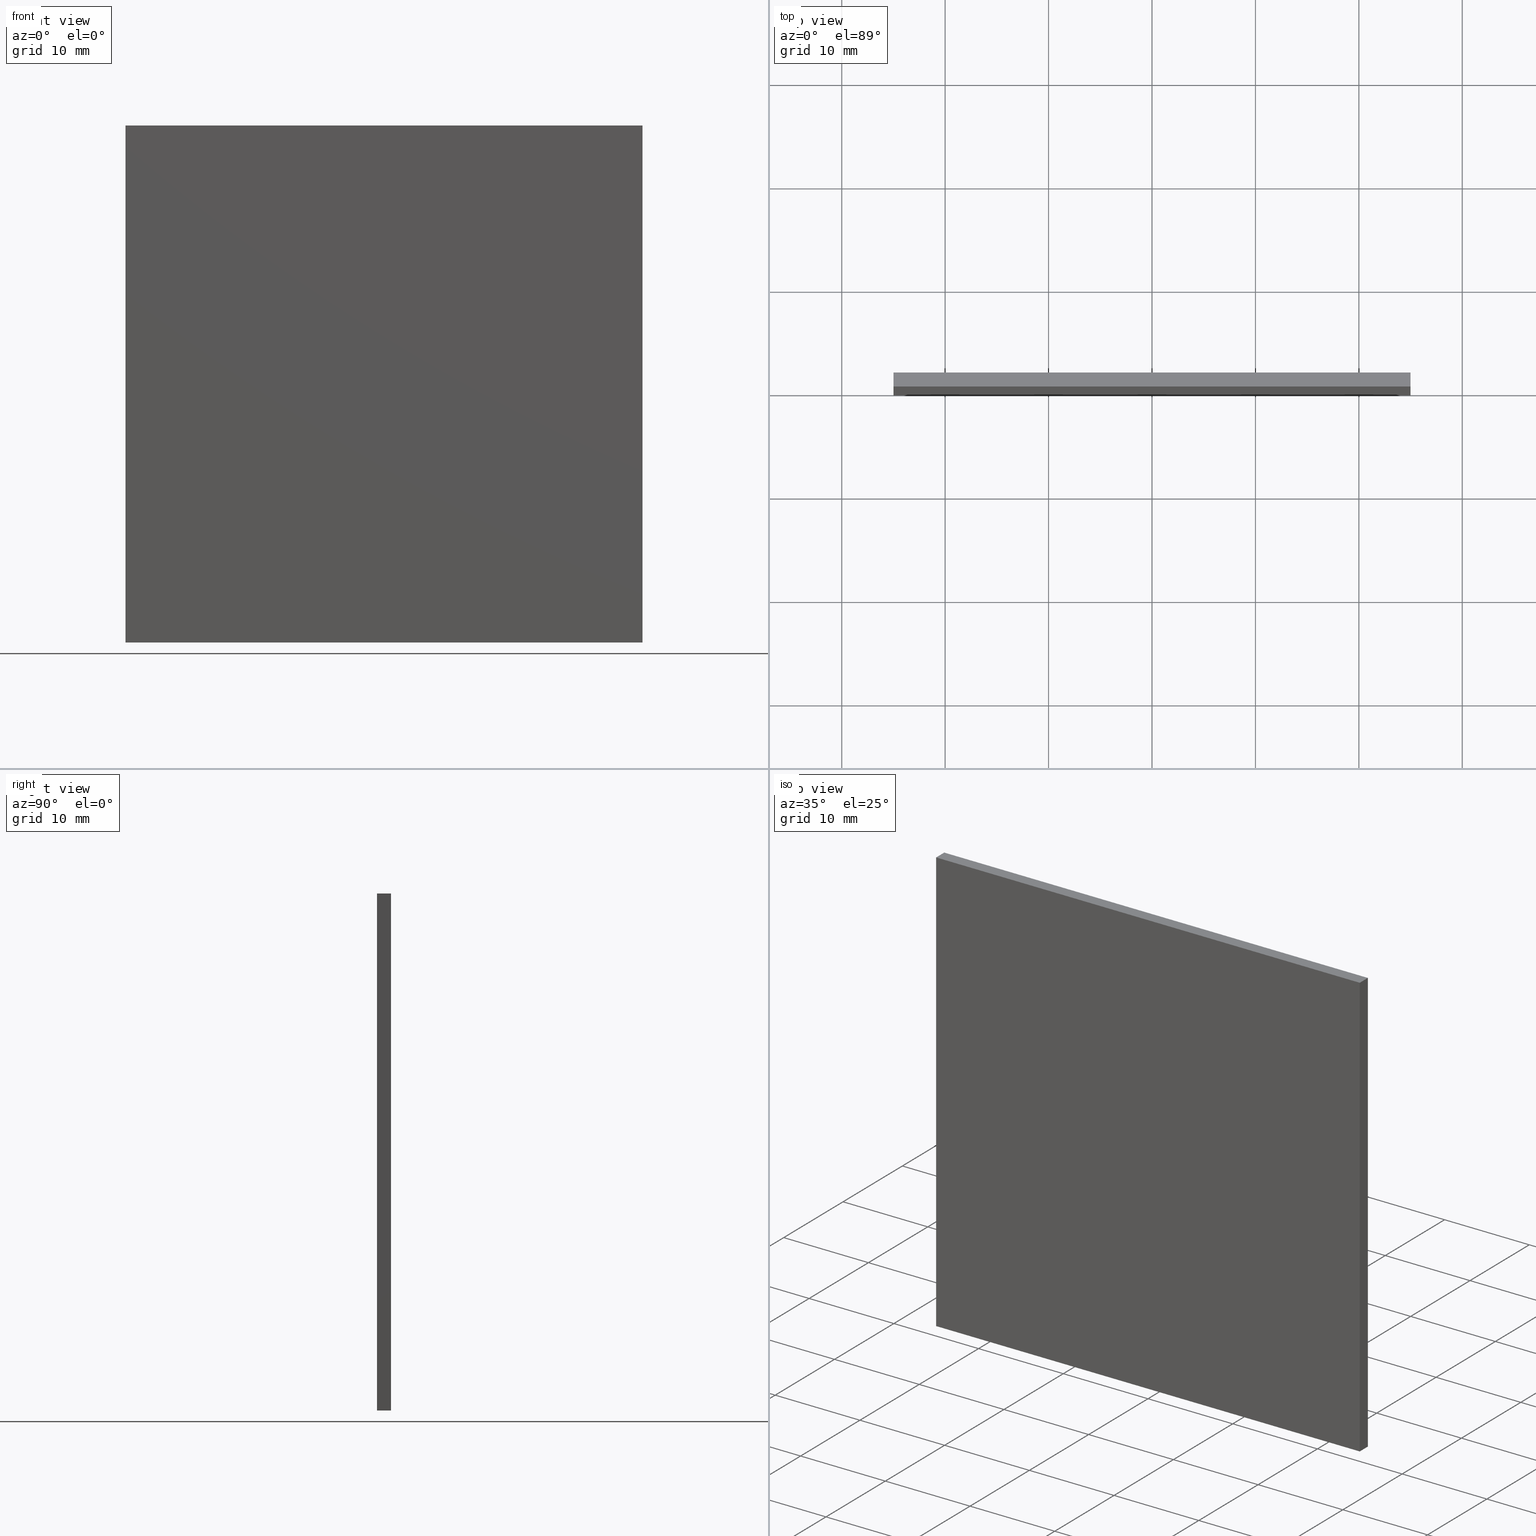
[diagram: canonical four-view strip — front | top / right | iso, engineering-drawing reading convention]
A machine part, canonical four-view strip (front | top / right | iso — engineering-drawing reading convention). The complete STEP part file that produces these views, byte-faithful:
ISO-10303-21;
HEADER;
FILE_DESCRIPTION (( 'STEP AP214' ),
    '1' );
FILE_NAME ('248612.STEP',
    '2019-08-06T06:15:41',
    ( 'user' ),
    ( '΢���й�' ),
    'SwSTEP 2.0',
    'SolidWorks 2016',
    '' );
FILE_SCHEMA (( 'AUTOMOTIVE_DESIGN' ));
ENDSEC;

DATA;
#1 = DIRECTION ( 'NONE',  ( 0.0000000000000000000, -0.0000000000000000000, -1.000000000000000000 ) ) ;
#2 = PRODUCT_DEFINITION_CONTEXT ( 'detailed design', #114, 'design' ) ;
#3 = LINE ( 'NONE', #56, #121 ) ;
#4 = ORIENTED_EDGE ( 'NONE', *, *, #50, .F. ) ;
#5 = AXIS2_PLACEMENT_3D ( 'NONE', #132, #202, #1 ) ;
#6 = AXIS2_PLACEMENT_3D ( 'NONE', #182, #25, #20 ) ;
#7 = VECTOR ( 'NONE', #71, 1000.000000000000000 ) ;
#8 =( LENGTH_UNIT ( ) NAMED_UNIT ( * ) SI_UNIT ( .MILLI., .METRE. ) );
#9 =( NAMED_UNIT ( * ) SI_UNIT ( $, .STERADIAN. ) SOLID_ANGLE_UNIT ( ) );
#10 = ORIENTED_EDGE ( 'NONE', *, *, #180, .F. ) ;
#11 = APPLICATION_PROTOCOL_DEFINITION ( 'draft international standard', 'automotive_design', 1998, #114 ) ;
#12 = ADVANCED_FACE ( 'NONE', ( #125 ), #100, .F. ) ;
#13 = DIRECTION ( 'NONE',  ( 0.0000000000000000000, 0.0000000000000000000, 1.000000000000000000 ) ) ;
#14 = DIRECTION ( 'NONE',  ( -1.000000000000000000, -0.0000000000000000000, -0.0000000000000000000 ) ) ;
#15 = STYLED_ITEM ( 'NONE', ( #174 ), #27 ) ;
#16 = ORIENTED_EDGE ( 'NONE', *, *, #63, .T. ) ;
#17 = FACE_OUTER_BOUND ( 'NONE', #183, .T. ) ;
#18 = VERTEX_POINT ( 'NONE', #43 ) ;
#19 = LINE ( 'NONE', #150, #88 ) ;
#20 = DIRECTION ( 'NONE',  ( 0.0000000000000000000, 0.0000000000000000000, 1.000000000000000000 ) ) ;
#21 = PLANE ( 'NONE',  #48 ) ;
#22 = SURFACE_STYLE_FILL_AREA ( #59 ) ;
#23 = EDGE_CURVE ( 'NONE', #173, #199, #47, .T. ) ;
#24 = VECTOR ( 'NONE', #75, 1000.000000000000000 ) ;
#25 = DIRECTION ( 'NONE',  ( -1.000000000000000000, 0.0000000000000000000, 0.0000000000000000000 ) ) ;
#26 = EDGE_CURVE ( 'NONE', #18, #200, #175, .T. ) ;
#27 = ADVANCED_BREP_SHAPE_REPRESENTATION ( '248612', ( #127, #109 ), #64 ) ;
#28 = ADVANCED_FACE ( 'NONE', ( #151 ), #123, .F. ) ;
#29 = VERTEX_POINT ( 'NONE', #113 ) ;
#30 = MECHANICAL_DESIGN_GEOMETRIC_PRESENTATION_REPRESENTATION (  '', ( #66 ), #144 ) ;
#31 = LINE ( 'NONE', #137, #84 ) ;
#32 = EDGE_CURVE ( 'NONE', #91, #18, #149, .T. ) ;
#33 = CARTESIAN_POINT ( 'NONE',  ( 0.0000000000000000000, 1.360000000000000100, 0.0000000000000000000 ) ) ;
#34 = CARTESIAN_POINT ( 'NONE',  ( 24.99999999999999600, 0.0000000000000000000, -25.00000000000000000 ) ) ;
#35 = VECTOR ( 'NONE', #187, 1000.000000000000000 ) ;
#36 = CARTESIAN_POINT ( 'NONE',  ( -25.00000000000000400, 0.0000000000000000000, 25.00000000000000000 ) ) ;
#37 = ORIENTED_EDGE ( 'NONE', *, *, #95, .F. ) ;
#38 = PRODUCT_CONTEXT ( 'NONE', #74, 'mechanical' ) ;
#39 = FILL_AREA_STYLE_COLOUR ( '', #44 ) ;
#40 = CARTESIAN_POINT ( 'NONE',  ( -25.00000000000000400, 0.0000000000000000000, -25.00000000000000000 ) ) ;
#41 = ORIENTED_EDGE ( 'NONE', *, *, #167, .T. ) ;
#42 = LINE ( 'NONE', #60, #7 ) ;
#43 = CARTESIAN_POINT ( 'NONE',  ( -25.00000000000000400, 0.0000000000000000000, 25.00000000000000000 ) ) ;
#44 = COLOUR_RGB ( '',1.000000000000000000, 1.000000000000000000, 1.000000000000000000 ) ;
#45 = EDGE_LOOP ( 'NONE', ( #197, #41, #67, #96 ) ) ;
#46 = CARTESIAN_POINT ( 'NONE',  ( 24.99999999999999600, 0.0000000000000000000, 25.00000000000000000 ) ) ;
#47 = LINE ( 'NONE', #40, #68 ) ;
#48 = AXIS2_PLACEMENT_3D ( 'NONE', #33, #103, #78 ) ;
#49 = PRESENTATION_STYLE_ASSIGNMENT (( #139 ) ) ;
#50 = EDGE_CURVE ( 'NONE', #199, #18, #146, .T. ) ;
#51 = ORIENTED_EDGE ( 'NONE', *, *, #23, .T. ) ;
#52 = CLOSED_SHELL ( 'NONE', ( #28, #166, #111, #12, #82, #70 ) ) ;
#53 = VERTEX_POINT ( 'NONE', #155 ) ;
#54 = DIRECTION ( 'NONE',  ( -0.0000000000000000000, -1.000000000000000000, -0.0000000000000000000 ) ) ;
#55 = DIRECTION ( 'NONE',  ( 1.000000000000000000, 0.0000000000000000000, -0.0000000000000000000 ) ) ;
#56 = CARTESIAN_POINT ( 'NONE',  ( -25.00000000000000400, 1.360000000000000100, -25.00000000000000000 ) ) ;
#57 = CARTESIAN_POINT ( 'NONE',  ( -25.00000000000000400, 1.360000000000000100, 25.00000000000000000 ) ) ;
#58 = SURFACE_SIDE_STYLE ('',( #22 ) ) ;
#59 = FILL_AREA_STYLE ('',( #77 ) ) ;
#60 = CARTESIAN_POINT ( 'NONE',  ( 24.99999999999999600, 0.0000000000000000000, 25.00000000000000000 ) ) ;
#61 = EDGE_LOOP ( 'NONE', ( #178, #10, #37, #135 ) ) ;
#62 = CARTESIAN_POINT ( 'NONE',  ( -25.00000000000000400, 0.0000000000000000000, -25.00000000000000000 ) ) ;
#63 = EDGE_CURVE ( 'NONE', #200, #173, #42, .T. ) ;
#64 =( GEOMETRIC_REPRESENTATION_CONTEXT ( 3 ) GLOBAL_UNCERTAINTY_ASSIGNED_CONTEXT ( ( #201 ) ) GLOBAL_UNIT_ASSIGNED_CONTEXT ( ( #8, #119, #171 ) ) REPRESENTATION_CONTEXT ( 'NONE', 'WORKASPACE' ) );
#65 = UNCERTAINTY_MEASURE_WITH_UNIT (LENGTH_MEASURE( 1.000000000000000100E-005 ), #189, 'distance_accuracy_value', 'NONE');
#66 = STYLED_ITEM ( 'NONE', ( #49 ), #127 ) ;
#67 = ORIENTED_EDGE ( 'NONE', *, *, #196, .T. ) ;
#68 = VECTOR ( 'NONE', #190, 1000.000000000000000 ) ;
#69 =( NAMED_UNIT ( * ) PLANE_ANGLE_UNIT ( ) SI_UNIT ( $, .RADIAN. ) );
#70 = ADVANCED_FACE ( 'NONE', ( #160 ), #120, .T. ) ;
#71 = DIRECTION ( 'NONE',  ( 0.0000000000000000000, 0.0000000000000000000, -1.000000000000000000 ) ) ;
#72 = EDGE_CURVE ( 'NONE', #53, #116, #194, .T. ) ;
#73 = MECHANICAL_DESIGN_GEOMETRIC_PRESENTATION_REPRESENTATION (  '', ( #15 ), #85 ) ;
#74 = APPLICATION_CONTEXT ( 'automotive_design' ) ;
#75 = DIRECTION ( 'NONE',  ( -0.0000000000000000000, -1.000000000000000000, -0.0000000000000000000 ) ) ;
#76 = CARTESIAN_POINT ( 'NONE',  ( -25.00000000000000400, 1.360000000000000100, -25.00000000000000000 ) ) ;
#77 = FILL_AREA_STYLE_COLOUR ( '', #165 ) ;
#78 = DIRECTION ( 'NONE',  ( 0.0000000000000000000, -0.0000000000000000000, -1.000000000000000000 ) ) ;
#79 = PRESENTATION_LAYER_ASSIGNMENT (  '', '', ( #66 ) ) ;
#80 = SHAPE_DEFINITION_REPRESENTATION ( #131, #27 ) ;
#81 = ORIENTED_EDGE ( 'NONE', *, *, #167, .F. ) ;
#82 = ADVANCED_FACE ( 'NONE', ( #184 ), #21, .F. ) ;
#83 = EDGE_CURVE ( 'NONE', #29, #199, #31, .T. ) ;
#84 = VECTOR ( 'NONE', #185, 1000.000000000000000 ) ;
#85 =( GEOMETRIC_REPRESENTATION_CONTEXT ( 3 ) GLOBAL_UNCERTAINTY_ASSIGNED_CONTEXT ( ( #65 ) ) GLOBAL_UNIT_ASSIGNED_CONTEXT ( ( #189, #115, #9 ) ) REPRESENTATION_CONTEXT ( 'NONE', 'WORKASPACE' ) );
#86 = EDGE_LOOP ( 'NONE', ( #16, #161, #97, #195 ) ) ;
#87 = EDGE_LOOP ( 'NONE', ( #51, #164, #81, #94 ) ) ;
#88 = VECTOR ( 'NONE', #134, 1000.000000000000000 ) ;
#89 = DIRECTION ( 'NONE',  ( 1.000000000000000000, 0.0000000000000000000, 0.0000000000000000000 ) ) ;
#90 = ORIENTED_EDGE ( 'NONE', *, *, #196, .F. ) ;
#91 = VERTEX_POINT ( 'NONE', #193 ) ;
#92 = DIRECTION ( 'NONE',  ( 0.0000000000000000000, 0.0000000000000000000, -1.000000000000000000 ) ) ;
#93 = DIRECTION ( 'NONE',  ( -0.0000000000000000000, -0.0000000000000000000, 1.000000000000000000 ) ) ;
#94 = ORIENTED_EDGE ( 'NONE', *, *, #176, .T. ) ;
#95 = EDGE_CURVE ( 'NONE', #91, #53, #19, .T. ) ;
#96 = ORIENTED_EDGE ( 'NONE', *, *, #95, .T. ) ;
#97 = ORIENTED_EDGE ( 'NONE', *, *, #72, .F. ) ;
#98 = SURFACE_SIDE_STYLE ('',( #104 ) ) ;
#99 = ORIENTED_EDGE ( 'NONE', *, *, #26, .F. ) ;
#100 = PLANE ( 'NONE',  #138 ) ;
#101 = DIRECTION ( 'NONE',  ( -0.0000000000000000000, -1.000000000000000000, -0.0000000000000000000 ) ) ;
#102 = VECTOR ( 'NONE', #54, 1000.000000000000000 ) ;
#103 = DIRECTION ( 'NONE',  ( 0.0000000000000000000, -1.000000000000000000, 0.0000000000000000000 ) ) ;
#104 = SURFACE_STYLE_FILL_AREA ( #186 ) ;
#105 = CARTESIAN_POINT ( 'NONE',  ( -25.00000000000000400, 1.360000000000000100, 25.00000000000000000 ) ) ;
#106 = PRESENTATION_LAYER_ASSIGNMENT (  '', '', ( #15 ) ) ;
#107 = LINE ( 'NONE', #163, #24 ) ;
#108 = VECTOR ( 'NONE', #93, 1000.000000000000000 ) ;
#109 = AXIS2_PLACEMENT_3D ( 'NONE', #191, #172, #89 ) ;
#110 = ORIENTED_EDGE ( 'NONE', *, *, #63, .F. ) ;
#111 = ADVANCED_FACE ( 'NONE', ( #17 ), #140, .F. ) ;
#112 = DIRECTION ( 'NONE',  ( 1.000000000000000000, 0.0000000000000000000, 0.0000000000000000000 ) ) ;
#113 = CARTESIAN_POINT ( 'NONE',  ( -25.00000000000000400, 1.360000000000000100, -25.00000000000000000 ) ) ;
#114 = APPLICATION_CONTEXT ( 'automotive_design' ) ;
#115 =( NAMED_UNIT ( * ) PLANE_ANGLE_UNIT ( ) SI_UNIT ( $, .RADIAN. ) );
#116 = VERTEX_POINT ( 'NONE', #124 ) ;
#117 = EDGE_LOOP ( 'NONE', ( #110, #99, #4, #145 ) ) ;
#118 =( LENGTH_UNIT ( ) NAMED_UNIT ( * ) SI_UNIT ( .MILLI., .METRE. ) );
#119 =( NAMED_UNIT ( * ) PLANE_ANGLE_UNIT ( ) SI_UNIT ( $, .RADIAN. ) );
#120 = PLANE ( 'NONE',  #5 ) ;
#121 = VECTOR ( 'NONE', #14, 1000.000000000000000 ) ;
#122 = DIRECTION ( 'NONE',  ( -1.000000000000000000, 0.0000000000000000000, -0.0000000000000000000 ) ) ;
#123 = PLANE ( 'NONE',  #6 ) ;
#124 = CARTESIAN_POINT ( 'NONE',  ( 24.99999999999999600, 1.360000000000000100, -25.00000000000000000 ) ) ;
#125 = FACE_OUTER_BOUND ( 'NONE', #61, .T. ) ;
#126 = PRODUCT_DEFINITION ( 'δ֪', '', #136, #2 ) ;
#127 = MANIFOLD_SOLID_BREP ( '͹̨-����1', #52 ) ;
#128 = PRODUCT ( '248612', '248612', '', ( #38 ) ) ;
#129 = LINE ( 'NONE', #142, #102 ) ;
#130 = ORIENTED_EDGE ( 'NONE', *, *, #83, .T. ) ;
#131 = PRODUCT_DEFINITION_SHAPE ( 'NONE', 'NONE',  #126 ) ;
#132 = CARTESIAN_POINT ( 'NONE',  ( 0.0000000000000000000, 0.0000000000000000000, 0.0000000000000000000 ) ) ;
#133 = DIRECTION ( 'NONE',  ( 1.000000000000000000, -0.0000000000000000000, 0.0000000000000000000 ) ) ;
#134 = DIRECTION ( 'NONE',  ( 1.000000000000000000, 0.0000000000000000000, 0.0000000000000000000 ) ) ;
#135 = ORIENTED_EDGE ( 'NONE', *, *, #32, .T. ) ;
#136 = PRODUCT_DEFINITION_FORMATION_WITH_SPECIFIED_SOURCE ( '�κ�', '', #128, .NOT_KNOWN. ) ;
#137 = CARTESIAN_POINT ( 'NONE',  ( -25.00000000000000400, 1.360000000000000100, -25.00000000000000000 ) ) ;
#138 = AXIS2_PLACEMENT_3D ( 'NONE', #169, #92, #122 ) ;
#139 = SURFACE_STYLE_USAGE ( .BOTH. , #98 ) ;
#140 = PLANE ( 'NONE',  #147 ) ;
#141 = VECTOR ( 'NONE', #112, 1000.000000000000000 ) ;
#142 = CARTESIAN_POINT ( 'NONE',  ( 24.99999999999999600, 1.360000000000000100, 25.00000000000000000 ) ) ;
#143 =( NAMED_UNIT ( * ) SI_UNIT ( $, .STERADIAN. ) SOLID_ANGLE_UNIT ( ) );
#144 =( GEOMETRIC_REPRESENTATION_CONTEXT ( 3 ) GLOBAL_UNCERTAINTY_ASSIGNED_CONTEXT ( ( #179 ) ) GLOBAL_UNIT_ASSIGNED_CONTEXT ( ( #118, #69, #143 ) ) REPRESENTATION_CONTEXT ( 'NONE', 'WORKASPACE' ) );
#145 = ORIENTED_EDGE ( 'NONE', *, *, #23, .F. ) ;
#146 = LINE ( 'NONE', #36, #162 ) ;
#147 = AXIS2_PLACEMENT_3D ( 'NONE', #153, #133, #154 ) ;
#148 = PRODUCT_RELATED_PRODUCT_CATEGORY ( 'part', '', ( #128 ) ) ;
#149 = LINE ( 'NONE', #105, #168 ) ;
#150 = CARTESIAN_POINT ( 'NONE',  ( -25.00000000000000400, 1.360000000000000100, 25.00000000000000000 ) ) ;
#151 = FACE_OUTER_BOUND ( 'NONE', #86, .T. ) ;
#152 = ORIENTED_EDGE ( 'NONE', *, *, #32, .F. ) ;
#153 = CARTESIAN_POINT ( 'NONE',  ( -25.00000000000000400, 1.360000000000000100, 25.00000000000000000 ) ) ;
#154 = DIRECTION ( 'NONE',  ( 0.0000000000000000000, 0.0000000000000000000, -1.000000000000000000 ) ) ;
#155 = CARTESIAN_POINT ( 'NONE',  ( 24.99999999999999600, 1.360000000000000100, 25.00000000000000000 ) ) ;
#156 = LINE ( 'NONE', #57, #108 ) ;
#157 = CARTESIAN_POINT ( 'NONE',  ( -25.00000000000000400, 0.0000000000000000000, 25.00000000000000000 ) ) ;
#158 = PLANE ( 'NONE',  #177 ) ;
#159 = ORIENTED_EDGE ( 'NONE', *, *, #50, .T. ) ;
#160 = FACE_OUTER_BOUND ( 'NONE', #117, .T. ) ;
#161 = ORIENTED_EDGE ( 'NONE', *, *, #176, .F. ) ;
#162 = VECTOR ( 'NONE', #192, 1000.000000000000000 ) ;
#163 = CARTESIAN_POINT ( 'NONE',  ( 24.99999999999999600, 1.360000000000000100, -25.00000000000000000 ) ) ;
#164 = ORIENTED_EDGE ( 'NONE', *, *, #83, .F. ) ;
#165 = COLOUR_RGB ( '',1.000000000000000000, 1.000000000000000000, 1.000000000000000000 ) ;
#166 = ADVANCED_FACE ( 'NONE', ( #198 ), #158, .F. ) ;
#167 = EDGE_CURVE ( 'NONE', #116, #29, #3, .T. ) ;
#168 = VECTOR ( 'NONE', #101, 1000.000000000000000 ) ;
#169 = CARTESIAN_POINT ( 'NONE',  ( -25.00000000000000400, 1.360000000000000100, 25.00000000000000000 ) ) ;
#170 = SURFACE_STYLE_USAGE ( .BOTH. , #58 ) ;
#171 =( NAMED_UNIT ( * ) SI_UNIT ( $, .STERADIAN. ) SOLID_ANGLE_UNIT ( ) );
#172 = DIRECTION ( 'NONE',  ( 0.0000000000000000000, 0.0000000000000000000, 1.000000000000000000 ) ) ;
#173 = VERTEX_POINT ( 'NONE', #34 ) ;
#174 = PRESENTATION_STYLE_ASSIGNMENT (( #170 ) ) ;
#175 = LINE ( 'NONE', #157, #141 ) ;
#176 = EDGE_CURVE ( 'NONE', #116, #173, #107, .T. ) ;
#177 = AXIS2_PLACEMENT_3D ( 'NONE', #76, #13, #55 ) ;
#178 = ORIENTED_EDGE ( 'NONE', *, *, #26, .T. ) ;
#179 = UNCERTAINTY_MEASURE_WITH_UNIT (LENGTH_MEASURE( 1.000000000000000100E-005 ), #118, 'distance_accuracy_value', 'NONE');
#180 = EDGE_CURVE ( 'NONE', #53, #200, #129, .T. ) ;
#181 = APPLICATION_PROTOCOL_DEFINITION ( 'draft international standard', 'automotive_design', 1998, #74 ) ;
#182 = CARTESIAN_POINT ( 'NONE',  ( 24.99999999999999600, 1.360000000000000100, 25.00000000000000000 ) ) ;
#183 = EDGE_LOOP ( 'NONE', ( #159, #152, #90, #130 ) ) ;
#184 = FACE_OUTER_BOUND ( 'NONE', #45, .T. ) ;
#185 = DIRECTION ( 'NONE',  ( -0.0000000000000000000, -1.000000000000000000, -0.0000000000000000000 ) ) ;
#186 = FILL_AREA_STYLE ('',( #39 ) ) ;
#187 = DIRECTION ( 'NONE',  ( 0.0000000000000000000, 0.0000000000000000000, -1.000000000000000000 ) ) ;
#188 = CARTESIAN_POINT ( 'NONE',  ( 24.99999999999999600, 1.360000000000000100, 25.00000000000000000 ) ) ;
#189 =( LENGTH_UNIT ( ) NAMED_UNIT ( * ) SI_UNIT ( .MILLI., .METRE. ) );
#190 = DIRECTION ( 'NONE',  ( -1.000000000000000000, -0.0000000000000000000, -0.0000000000000000000 ) ) ;
#191 = CARTESIAN_POINT ( 'NONE',  ( 0.0000000000000000000, 0.0000000000000000000, 0.0000000000000000000 ) ) ;
#192 = DIRECTION ( 'NONE',  ( -0.0000000000000000000, -0.0000000000000000000, 1.000000000000000000 ) ) ;
#193 = CARTESIAN_POINT ( 'NONE',  ( -25.00000000000000400, 1.360000000000000100, 25.00000000000000000 ) ) ;
#194 = LINE ( 'NONE', #188, #35 ) ;
#195 = ORIENTED_EDGE ( 'NONE', *, *, #180, .T. ) ;
#196 = EDGE_CURVE ( 'NONE', #29, #91, #156, .T. ) ;
#197 = ORIENTED_EDGE ( 'NONE', *, *, #72, .T. ) ;
#198 = FACE_OUTER_BOUND ( 'NONE', #87, .T. ) ;
#199 = VERTEX_POINT ( 'NONE', #62 ) ;
#200 = VERTEX_POINT ( 'NONE', #46 ) ;
#201 = UNCERTAINTY_MEASURE_WITH_UNIT (LENGTH_MEASURE( 1.000000000000000100E-005 ), #8, 'distance_accuracy_value', 'NONE');
#202 = DIRECTION ( 'NONE',  ( 0.0000000000000000000, -1.000000000000000000, 0.0000000000000000000 ) ) ;
ENDSEC;
END-ISO-10303-21;
